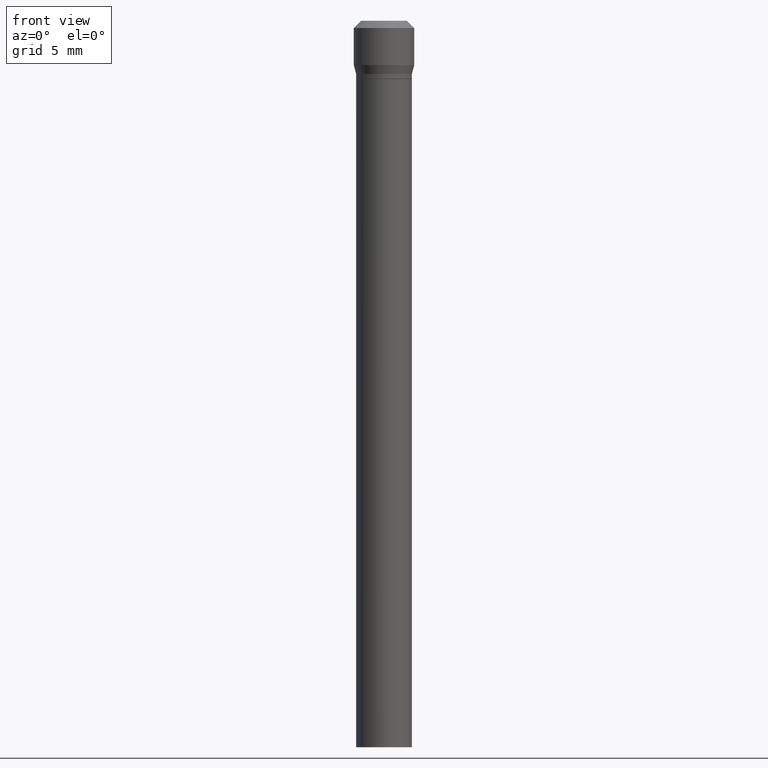
[diagram: clean part render]
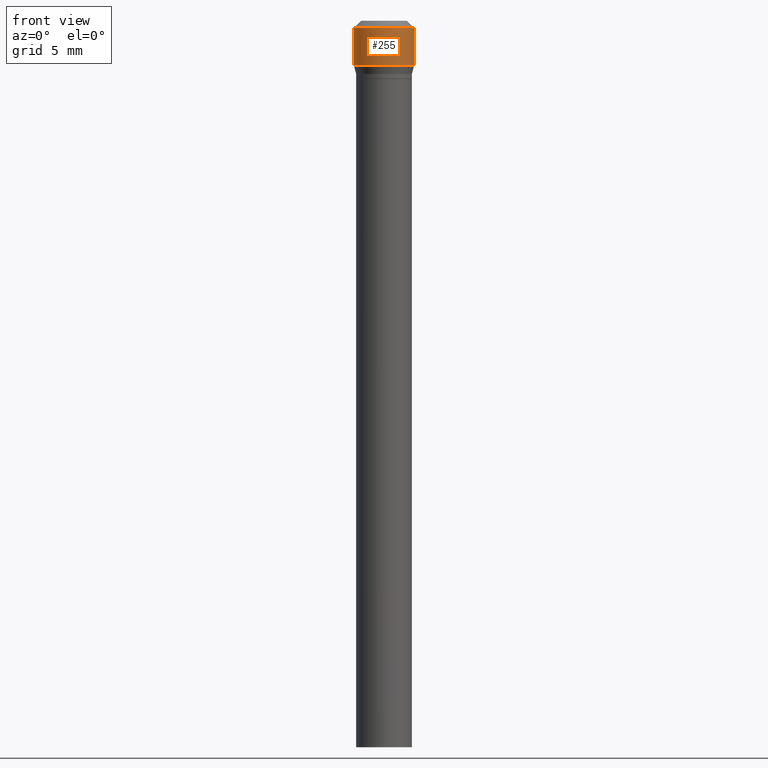
[diagram: same view with one face highlighted and labeled with its STEP entity id]
A machine part, front view. The second image highlights one B-rep face of the part: STEP entity #255.
In plain terms, the highlighted cylindrical surface (edge-blend (fillet) strip) has radius 1.5875 mm, axis along (-0, 0, 1).
Its self-contained STEP definition (entity closure, byte-faithful):
#4 = VECTOR ( 'NONE', #30, 39.37007874015748143 ) ;
#6 = VERTEX_POINT ( 'NONE', #465 ) ;
#10 = AXIS2_PLACEMENT_3D ( 'NONE', #143, #271, #232 ) ;
#29 = CARTESIAN_POINT ( 'NONE',  ( 0.06250000000000000000, -4.364351673553916694E-16, 3.047610484872459871E-30 ) ) ;
#30 = DIRECTION ( 'NONE',  ( -2.445468806185136877E-29, 3.491481338843145188E-15, 1.000000000000000000 ) ) ;
#34 = VERTEX_POINT ( 'NONE', #242 ) ;
#40 = DIRECTION ( 'NONE',  ( -2.445468806185136877E-29, 3.491481338843145188E-15, 1.000000000000000000 ) ) ;
#110 = AXIS2_PLACEMENT_3D ( 'NONE', #253, #445, #123 ) ;
#120 = EDGE_CURVE ( 'NONE', #309, #206, #294, .T. ) ;
#123 = DIRECTION ( 'NONE',  ( 1.000000000000000000, -6.982962677686266711E-15, 4.876176775795935793E-29 ) ) ;
#130 = EDGE_CURVE ( 'NONE', #309, #6, #420, .T. ) ;
#143 = CARTESIAN_POINT ( 'NONE',  ( 2.233684995153270850E-30, -3.189110185215410040E-16, -0.09133974596215592434 ) ) ;
#166 = ORIENTED_EDGE ( 'NONE', *, *, #348, .F. ) ;
#190 = VECTOR ( 'NONE', #40, 39.37007874015748143 ) ;
#206 = VERTEX_POINT ( 'NONE', #367 ) ;
#232 = DIRECTION ( 'NONE',  ( 1.000000000000000000, -6.982962677686266711E-15, 0.000000000000000000 ) ) ;
#234 = LINE ( 'NONE', #29, #190 ) ;
#242 = CARTESIAN_POINT ( 'NONE',  ( 0.06250000000000000000, -4.888073874380388472E-16, -0.01499999999999999944 ) ) ;
#248 = AXIS2_PLACEMENT_3D ( 'NONE', #259, #368, #293 ) ;
#249 = ORIENTED_EDGE ( 'NONE', *, *, #130, .F. ) ;
#253 = CARTESIAN_POINT ( 'NONE',  ( 0.000000000000000000, 0.000000000000000000, 0.000000000000000000 ) ) ;
#255 = ADVANCED_FACE ( 'NONE', ( #289 ), #335, .T. ) ;
#259 = CARTESIAN_POINT ( 'NONE',  ( 3.668203209277705088E-31, -5.237222008264718399E-17, -0.01499999999999999944 ) ) ;
#271 = DIRECTION ( 'NONE',  ( -2.445468806185136597E-29, 3.491481338843145583E-15, 1.000000000000000000 ) ) ;
#289 = FACE_OUTER_BOUND ( 'NONE', #422, .T. ) ;
#293 = DIRECTION ( 'NONE',  ( 1.000000000000000000, -6.982962677686266711E-15, 0.000000000000000000 ) ) ;
#294 = CIRCLE ( 'NONE', #10, 0.06250000000000000000 ) ;
#309 = VERTEX_POINT ( 'NONE', #365 ) ;
#335 = CYLINDRICAL_SURFACE ( 'NONE', #110, 0.06250000000000000000 ) ;
#345 = ORIENTED_EDGE ( 'NONE', *, *, #424, .T. ) ;
#348 = EDGE_CURVE ( 'NONE', #6, #34, #357, .T. ) ;
#357 = CIRCLE ( 'NONE', #248, 0.06250000000000000000 ) ;
#365 = CARTESIAN_POINT ( 'NONE',  ( -0.06250000000000000000, 1.251781913285216615E-16, -0.09133974596215592434 ) ) ;
#367 = CARTESIAN_POINT ( 'NONE',  ( 0.06250000000000000000, -7.553461858769327227E-16, -0.09133974596215592434 ) ) ;
#368 = DIRECTION ( 'NONE',  ( -2.445468806185136597E-29, 3.491481338843145583E-15, 1.000000000000000000 ) ) ;
#375 = ORIENTED_EDGE ( 'NONE', *, *, #120, .T. ) ;
#420 = LINE ( 'NONE', #427, #4 ) ;
#422 = EDGE_LOOP ( 'NONE', ( #249, #375, #345, #166 ) ) ;
#424 = EDGE_CURVE ( 'NONE', #206, #34, #234, .T. ) ;
#427 = CARTESIAN_POINT ( 'NONE',  ( -0.06250000000000000000, 4.440892098500626162E-16, -3.074334431409316114E-30 ) ) ;
#445 = DIRECTION ( 'NONE',  ( -2.445468806185136597E-29, 3.491481338843145583E-15, 1.000000000000000000 ) ) ;
#465 = CARTESIAN_POINT ( 'NONE',  ( -0.06250000000000000000, 2.584475905479685006E-16, -0.01499999999999999944 ) ) ;